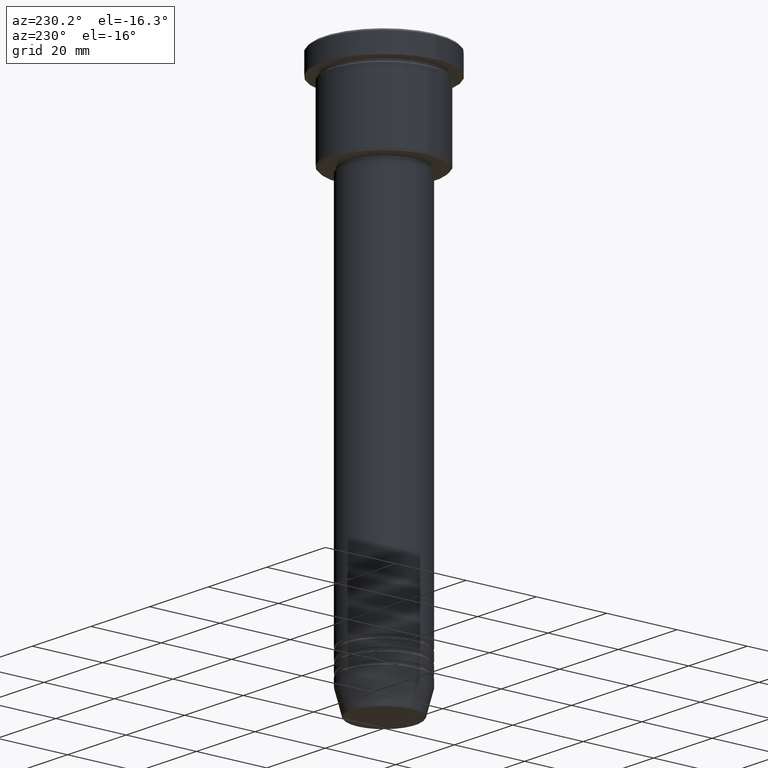
[diagram: clean part render]
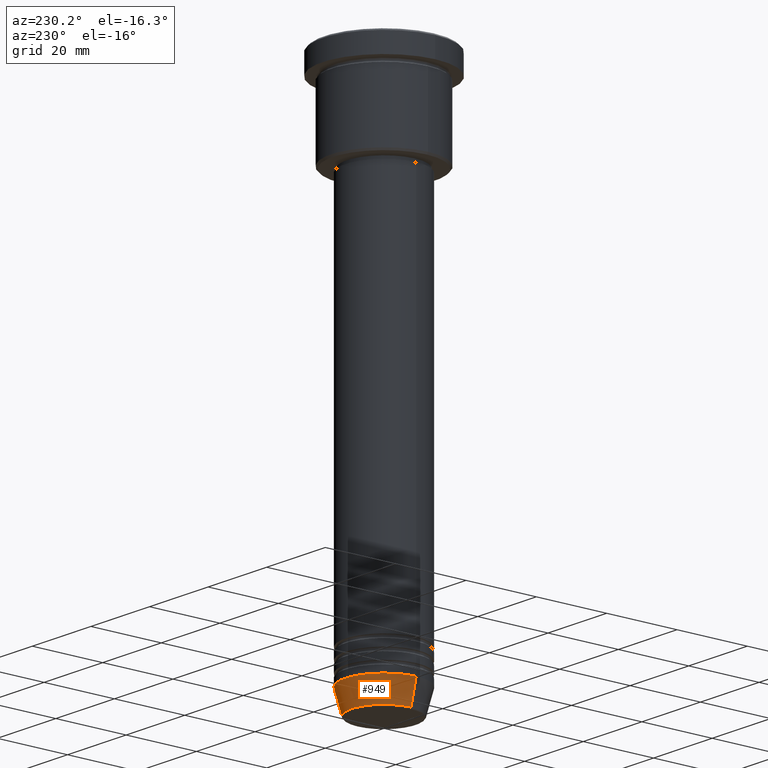
[diagram: same view with one face highlighted and labeled with its STEP entity id]
A machine part, auxiliary view. The second image highlights one B-rep face of the part: STEP entity #949.
In plain terms, the highlighted conical surface has half-angle 15 deg.
Its self-contained STEP definition (entity closure, byte-faithful):
#20 = CARTESIAN_POINT ( 'NONE',  ( -11.00000000000000000, 1.347111479062088405E-15, -145.0000000000000000 ) ) ;
#63 = VECTOR ( 'NONE', #166, 1000.000000000000000 ) ;
#64 = CONICAL_SURFACE ( 'NONE', #159, 11.00000000000000000, 0.2617993877991500740 ) ;
#83 = EDGE_CURVE ( 'NONE', #646, #642, #135, .T. ) ;
#101 = CARTESIAN_POINT ( 'NONE',  ( -11.00000000000000000, 1.347111479062088405E-15, -145.0000000000000000 ) ) ;
#135 = CIRCLE ( 'NONE', #628, 9.223655072137194821 ) ;
#141 = DIRECTION ( 'NONE',  ( 1.000000000000000000, 0.000000000000000000, 0.000000000000000000 ) ) ;
#159 = AXIS2_PLACEMENT_3D ( 'NONE', #584, #316, #141 ) ;
#166 = DIRECTION ( 'NONE',  ( 0.2588190451025213501, 0.000000000000000000, 0.9659258262890680902 ) ) ;
#248 = CARTESIAN_POINT ( 'NONE',  ( 11.00000000000000000, 0.000000000000000000, -145.0000000000000000 ) ) ;
#282 = ORIENTED_EDGE ( 'NONE', *, *, #644, .F. ) ;
#303 = VERTEX_POINT ( 'NONE', #101 ) ;
#316 = DIRECTION ( 'NONE',  ( -0.000000000000000000, -0.000000000000000000, 1.000000000000000000 ) ) ;
#326 = EDGE_CURVE ( 'NONE', #642, #303, #565, .T. ) ;
#355 = DIRECTION ( 'NONE',  ( 1.000000000000000000, 0.000000000000000000, 0.000000000000000000 ) ) ;
#374 = ORIENTED_EDGE ( 'NONE', *, *, #326, .T. ) ;
#413 = DIRECTION ( 'NONE',  ( 1.000000000000000000, 0.000000000000000000, 0.000000000000000000 ) ) ;
#415 = FACE_OUTER_BOUND ( 'NONE', #816, .T. ) ;
#434 = VECTOR ( 'NONE', #1017, 1000.000000000000000 ) ;
#446 = DIRECTION ( 'NONE',  ( -0.000000000000000000, -0.000000000000000000, 1.000000000000000000 ) ) ;
#457 = AXIS2_PLACEMENT_3D ( 'NONE', #1014, #446, #355 ) ;
#523 = EDGE_CURVE ( 'NONE', #646, #739, #1148, .T. ) ;
#565 = LINE ( 'NONE', #20, #434 ) ;
#584 = CARTESIAN_POINT ( 'NONE',  ( 0.000000000000000000, 0.000000000000000000, -145.0000000000000000 ) ) ;
#628 = AXIS2_PLACEMENT_3D ( 'NONE', #779, #950, #413 ) ;
#641 = ORIENTED_EDGE ( 'NONE', *, *, #83, .T. ) ;
#642 = VERTEX_POINT ( 'NONE', #827 ) ;
#644 = EDGE_CURVE ( 'NONE', #739, #303, #980, .T. ) ;
#646 = VERTEX_POINT ( 'NONE', #991 ) ;
#739 = VERTEX_POINT ( 'NONE', #929 ) ;
#779 = CARTESIAN_POINT ( 'NONE',  ( 0.000000000000000000, 0.000000000000000000, -151.6294095225512137 ) ) ;
#816 = EDGE_LOOP ( 'NONE', ( #641, #374, #282, #1020 ) ) ;
#827 = CARTESIAN_POINT ( 'NONE',  ( -9.223655072137194821, 1.238341722557647596E-15, -151.6294095225512137 ) ) ;
#929 = CARTESIAN_POINT ( 'NONE',  ( 11.00000000000000000, 0.000000000000000000, -145.0000000000000000 ) ) ;
#949 = ADVANCED_FACE ( 'NONE', ( #415 ), #64, .T. ) ;
#950 = DIRECTION ( 'NONE',  ( -0.000000000000000000, -0.000000000000000000, 1.000000000000000000 ) ) ;
#980 = CIRCLE ( 'NONE', #457, 11.00000000000000000 ) ;
#991 = CARTESIAN_POINT ( 'NONE',  ( 9.223655072137194821, 0.000000000000000000, -151.6294095225512137 ) ) ;
#1014 = CARTESIAN_POINT ( 'NONE',  ( 0.000000000000000000, 0.000000000000000000, -145.0000000000000000 ) ) ;
#1017 = DIRECTION ( 'NONE',  ( -0.2588190451025213501, 3.169619151431772337E-17, 0.9659258262890680902 ) ) ;
#1020 = ORIENTED_EDGE ( 'NONE', *, *, #523, .F. ) ;
#1148 = LINE ( 'NONE', #248, #63 ) ;